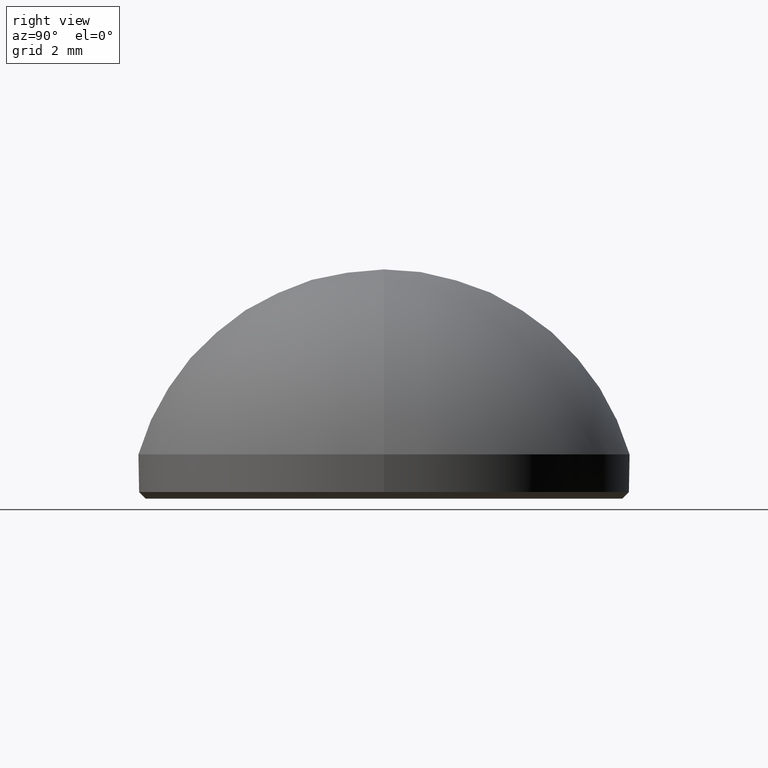
[diagram: clean part render]
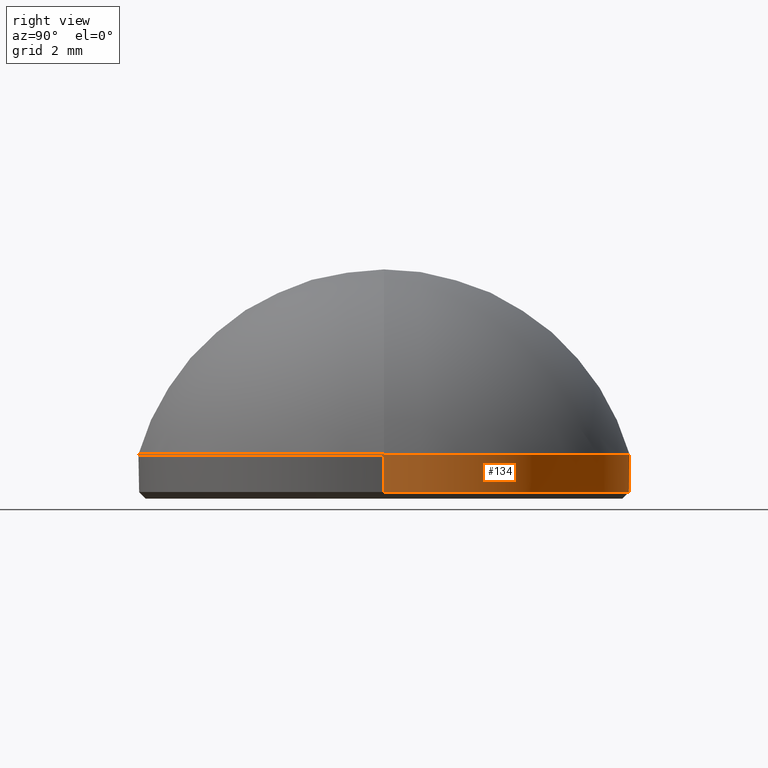
[diagram: same view with one face highlighted and labeled with its STEP entity id]
A machine part, right view. The second image highlights one B-rep face of the part: STEP entity #134.
In plain terms, the highlighted cylindrical surface (partial cylindrical patch) has radius 7.5 mm, axis along (-0, -0, -1).
Its self-contained STEP definition (entity closure, byte-faithful):
#3 = EDGE_CURVE ( 'NONE', #27, #149, #214, .T. ) ;
#5 = VERTEX_POINT ( 'NONE', #76 ) ;
#8 = DIRECTION ( 'NONE',  ( -0.000000000000000000, -0.000000000000000000, 1.000000000000000000 ) ) ;
#12 = DIRECTION ( 'NONE',  ( 0.000000000000000000, 0.000000000000000000, 1.000000000000000000 ) ) ;
#26 = CARTESIAN_POINT ( 'NONE',  ( 0.000000000000000000, 0.000000000000000000, 0.2000000000000065892 ) ) ;
#27 = VERTEX_POINT ( 'NONE', #155 ) ;
#31 = LINE ( 'NONE', #99, #46 ) ;
#34 = DIRECTION ( 'NONE',  ( -0.000000000000000000, -0.000000000000000000, -1.000000000000000000 ) ) ;
#43 = CARTESIAN_POINT ( 'NONE',  ( 7.500000000000000888, 9.184850993605147944E-16, 1.350000000000000089 ) ) ;
#46 = VECTOR ( 'NONE', #34, 1000.000000000000000 ) ;
#50 = CARTESIAN_POINT ( 'NONE',  ( 0.000000000000000000, 0.000000000000000000, 1.350000000000000089 ) ) ;
#54 = ORIENTED_EDGE ( 'NONE', *, *, #65, .T. ) ;
#55 = VECTOR ( 'NONE', #194, 1000.000000000000000 ) ;
#60 = EDGE_LOOP ( 'NONE', ( #169, #54, #158, #84 ) ) ;
#65 = EDGE_CURVE ( 'NONE', #188, #27, #121, .T. ) ;
#67 = DIRECTION ( 'NONE',  ( 1.000000000000000000, 0.000000000000000000, 0.000000000000000000 ) ) ;
#76 = CARTESIAN_POINT ( 'NONE',  ( -7.500000000000000888, 0.000000000000000000, 1.350000000000000089 ) ) ;
#80 = DIRECTION ( 'NONE',  ( -0.000000000000000000, -0.000000000000000000, -1.000000000000000000 ) ) ;
#84 = ORIENTED_EDGE ( 'NONE', *, *, #202, .F. ) ;
#99 = CARTESIAN_POINT ( 'NONE',  ( -7.500000000000000888, 0.000000000000000000, 1.350000000000000089 ) ) ;
#100 = CYLINDRICAL_SURFACE ( 'NONE', #173, 7.500000000000000888 ) ;
#104 = EDGE_CURVE ( 'NONE', #188, #5, #118, .T. ) ;
#106 = AXIS2_PLACEMENT_3D ( 'NONE', #50, #12, #67 ) ;
#116 = FACE_OUTER_BOUND ( 'NONE', #60, .T. ) ;
#118 = CIRCLE ( 'NONE', #106, 7.500000000000000888 ) ;
#119 = CARTESIAN_POINT ( 'NONE',  ( -7.500000000000000888, 0.000000000000000000, 0.2000000000000065892 ) ) ;
#121 = LINE ( 'NONE', #43, #55 ) ;
#122 = AXIS2_PLACEMENT_3D ( 'NONE', #26, #8, #192 ) ;
#129 = CARTESIAN_POINT ( 'NONE',  ( 0.000000000000000000, 0.000000000000000000, 1.350000000000000089 ) ) ;
#134 = ADVANCED_FACE ( 'NONE', ( #116 ), #100, .T. ) ;
#149 = VERTEX_POINT ( 'NONE', #119 ) ;
#155 = CARTESIAN_POINT ( 'NONE',  ( 7.500000000000000888, 9.184850993605147944E-16, 0.2000000000000065892 ) ) ;
#158 = ORIENTED_EDGE ( 'NONE', *, *, #3, .T. ) ;
#169 = ORIENTED_EDGE ( 'NONE', *, *, #104, .F. ) ;
#173 = AXIS2_PLACEMENT_3D ( 'NONE', #129, #80, #212 ) ;
#188 = VERTEX_POINT ( 'NONE', #198 ) ;
#192 = DIRECTION ( 'NONE',  ( 1.000000000000000000, 0.000000000000000000, 0.000000000000000000 ) ) ;
#194 = DIRECTION ( 'NONE',  ( -0.000000000000000000, -0.000000000000000000, -1.000000000000000000 ) ) ;
#198 = CARTESIAN_POINT ( 'NONE',  ( 7.500000000000000888, 9.184850993605147944E-16, 1.350000000000000089 ) ) ;
#202 = EDGE_CURVE ( 'NONE', #5, #149, #31, .T. ) ;
#212 = DIRECTION ( 'NONE',  ( -1.000000000000000000, 0.000000000000000000, 0.000000000000000000 ) ) ;
#214 = CIRCLE ( 'NONE', #122, 7.500000000000000888 ) ;